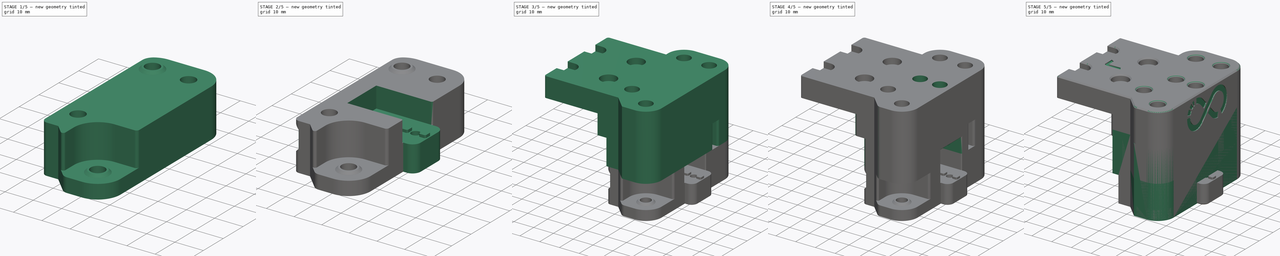
[diagram: build sequence overview — one tinted view per stage of 5, left to right]
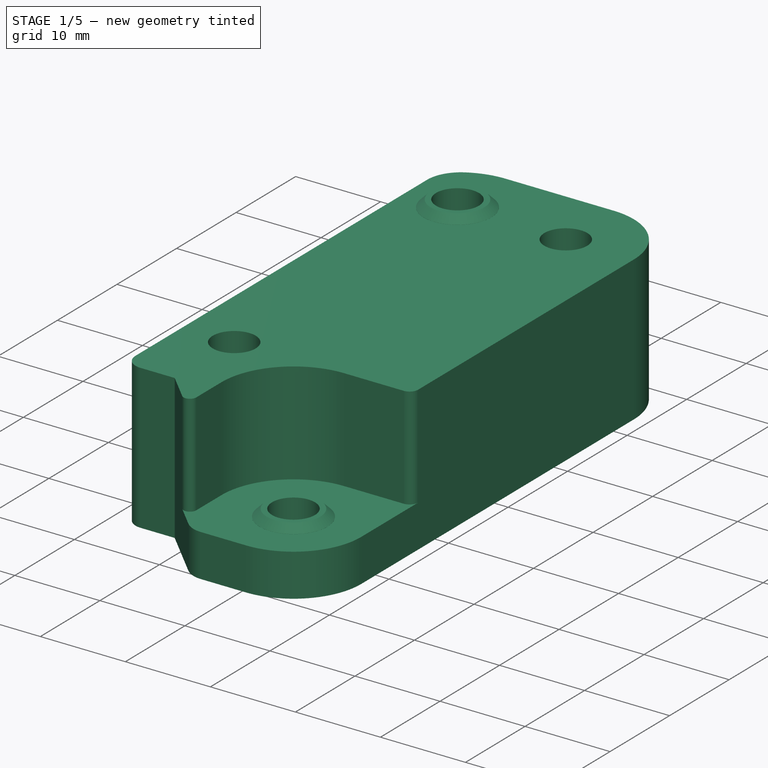
[diagram: stage 1 of 5 — iso view after this stage's code; geometry added in this stage tinted green]
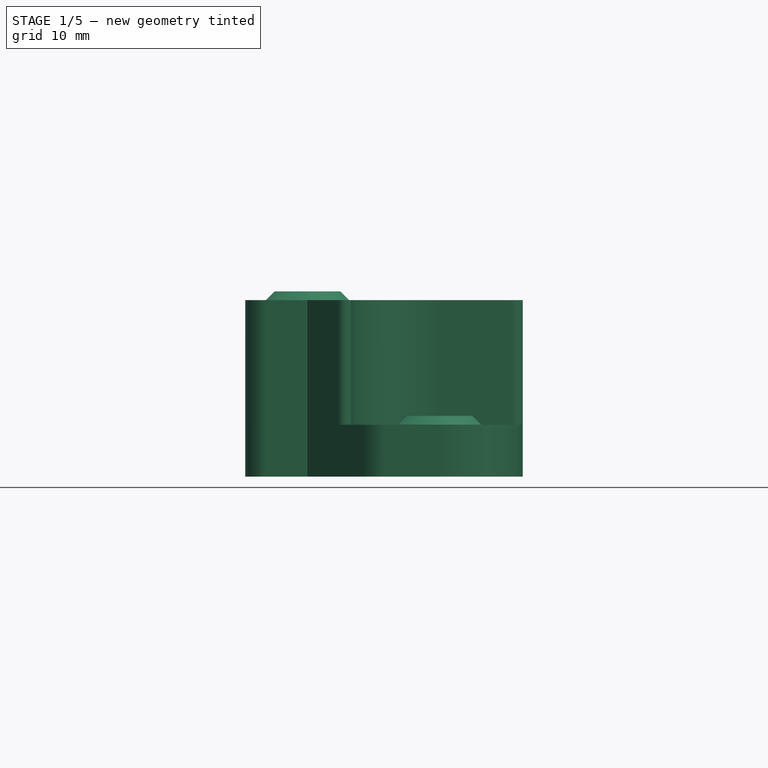
[diagram: stage 1 of 5 — front view after this stage's code; geometry added in this stage tinted green]
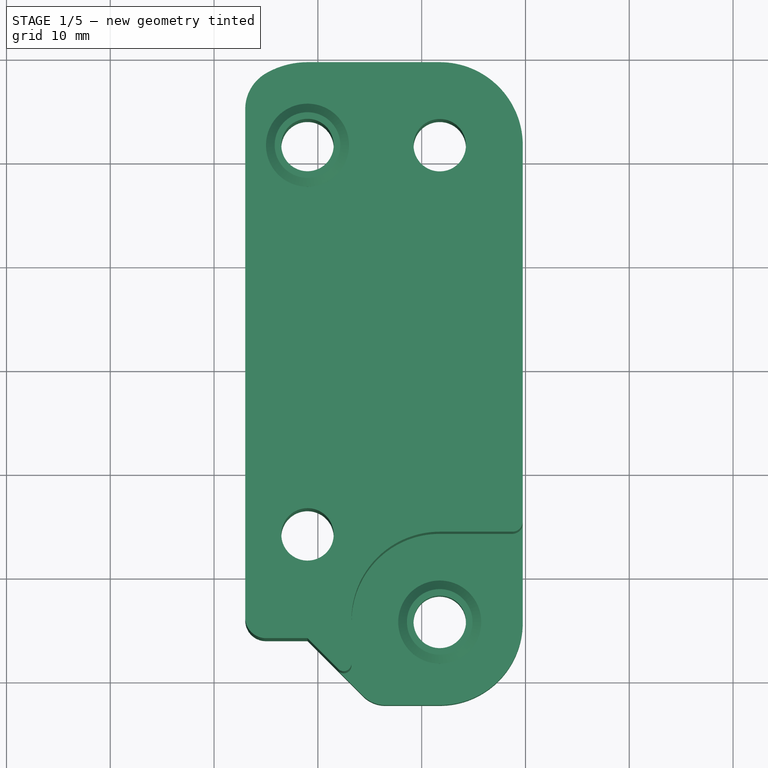
[diagram: stage 1 of 5 — top view after this stage's code; geometry added in this stage tinted green]
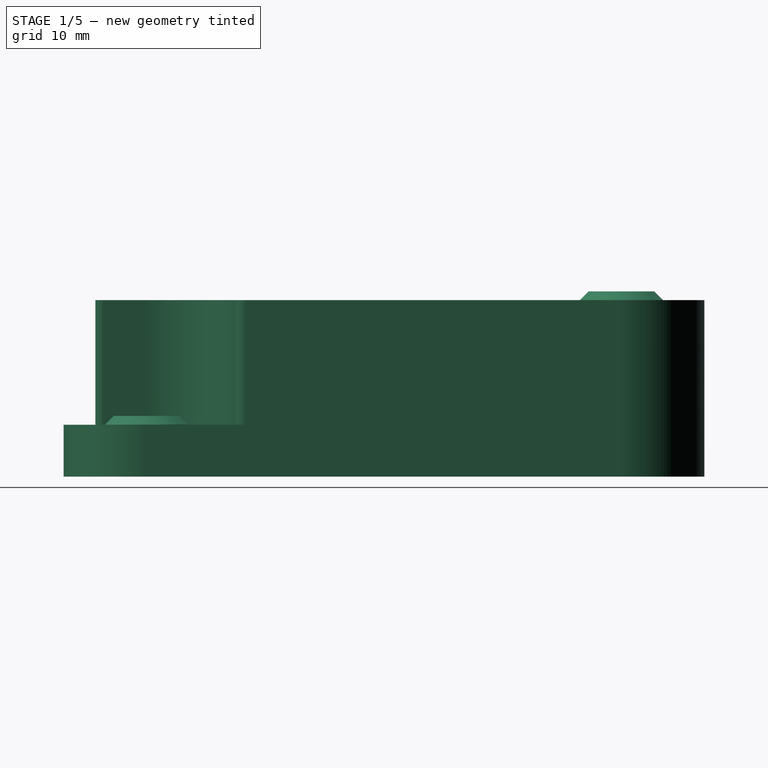
[diagram: stage 1 of 5 — right view after this stage's code; geometry added in this stage tinted green]
FCSTD DOCUMENT  (FreeCAD 0.19R24291 (Git))
Label: y-carrier-left-makerbeamxl
License: Other
LicenseURL: GPL3
objects: Sketcher::SketchObject×22, PartDesign::Pocket×15, PartDesign::Fillet×12, PartDesign::Chamfer×9, PartDesign::Pad×8, Part::Feature×6, PartDesign::FeatureBase×3, PartDesign::Body×3, Part::Refine×2, Part::Chamfer×2, Part::Cut×2, Spreadsheet::Sheet×1, Part::Extrusion×1
note: 129 computed .brp shape members not serialized (recipe doc carries the construction recipe); baked Part::Feature solids carry a one-line shape summary decoded from their .brp

FEATURE [PartDesign::FeatureBase] BaseFeature001
  BaseFeature = -> Extrude001
FEATURE [Sketcher::SketchObject] Sketch002
  FullyConstrained = true
  MapMode = 5
  Placement = pos=(0,0,17) rot=(0,0,1;0rad)
  Support = -> [BaseFeature001]
  expr: Constraints[0] = <<params>>.front_x_offset
  expr: Constraints[1] = <<params>>.front_y_offset
  expr: Constraints[8] = <<params>>.idler_clearance
  sketch-geometry (7):
    g0: ArcOfCircle CenterX=21.74 CenterY=-24.24 CenterZ=0 NormalX=0 NormalY=0 NormalZ=1 AngleXU=0 Radius=8.5 StartAngle=1.5708 EndAngle=3.14159
    g1: LineSegment StartX=21.74 StartY=-24.24 StartZ=0 EndX=21.74 EndY=-15.74 EndZ=0
    g2: LineSegment StartX=13.24 StartY=-24.24 StartZ=0 EndX=21.74 EndY=-24.24 EndZ=0
    g3: LineSegment StartX=13.24 StartY=-24.24 StartZ=0 EndX=13.24 EndY=-33.24 EndZ=0
    g4: LineSegment StartX=13.24 StartY=-33.24 StartZ=0 EndX=30.74 EndY=-33.24 EndZ=0
    g5: LineSegment StartX=30.74 StartY=-33.24 StartZ=0 EndX=30.74 EndY=-15.74 EndZ=0
    g6: LineSegment StartX=30.74 StartY=-15.74 StartZ=0 EndX=21.74 EndY=-15.74 EndZ=0
  constraints (19):
    c: DistanceX(g-1,g0) = 21.74
    c: DistanceY(g0,g-1) = 24.24
    c: Coincident(g1,g0)
    c: Coincident(g1,g0)
    c: Vertical(g1)
    c: Coincident(g2,g0)
    c: Coincident(g2,g0)
    c: Horizontal(g2)
    c: Radius(g0) = 8.5
    c: Tangent(g0,g3) = -1.5708
    c: Coincident(g3,g4)
    c: Horizontal(g4)
    c: Coincident(g4,g5)
    c: Coincident(g5,g6)
    c: Coincident(g6,g0)
    c: Horizontal(g6)
    c: Vertical(g5)
    c: DistanceY(g3,g3) = 9
    c: DistanceX(g6,g6) = 9
FEATURE [PartDesign::Pocket] Pocket003
  BaseFeature = -> BaseFeature001
  Length = 12
  Length2 = 100
  Profile = -> Sketch002
  Type = 0
  expr: Length = <<params>>.idler_pocket_height
FEATURE [PartDesign::Fillet] Fillet
  Base = -> Pocket003 [Edge38]
  BaseFeature = -> Pocket003
  Radius = 0.75
  SupportTransform = false
FEATURE [PartDesign::Fillet] Fillet001
  Base = -> Fillet [Edge28]
  BaseFeature = -> Fillet
  Radius = 1
  SupportTransform = false
FEATURE [Sketcher::SketchObject] Sketch004
  FullyConstrained = true
  MapMode = 5
  Placement = pos=(0,0,5) rot=(0,0,1;0rad)
  Support = -> [Fillet001]
  expr: Constraints[1] = <<params>>.m5_hole_small
  expr: Constraints[2] = <<params>>.idler_support_r
  expr: Constraints[3] = <<params>>.front_x_offset
  expr: Constraints[4] = <<params>>.front_y_offset
  sketch-geometry (2):
    g0: Circle CenterX=21.74 CenterY=-24.24 CenterZ=0 NormalX=0 NormalY=0 NormalZ=1 AngleXU=0 Radius=4
    g1: Circle CenterX=21.74 CenterY=-24.24 CenterZ=0 NormalX=0 NormalY=0 NormalZ=1 AngleXU=0 Radius=2.525
  constraints (5):
    c: Coincident(g1,g0)
    c: Radius(g1) = 2.525
    c: Radius(g0) = 4
    c: DistanceX(g-1,g0) = 21.74
    c: DistanceY(g0,g-1) = 24.24
FEATURE [PartDesign::Pad] Pad
  BaseFeature = -> Fillet001
  Direction = (1,1,1)
  Length = 0.85
  Length2 = 100
  Profile = -> Sketch004
  Type = 0
  expr: Length = <<params>>.idler_support_h
FEATURE [Sketcher::SketchObject] Sketch005
  FullyConstrained = true
  MapMode = 5
  Placement = pos=(0,0,17) rot=(0,0,1;0rad)
  Support = -> [Pad]
  expr: Constraints[1] = <<params>>.idler_support_r
  expr: Constraints[2] = <<params>>.m5_hole_small
  expr: Constraints[3] = <<params>>.back_x_offset
  expr: Constraints[4] = <<params>>.back_y_offset
  sketch-geometry (2):
    g0: Circle CenterX=9 CenterY=21.5 CenterZ=0 NormalX=0 NormalY=0 NormalZ=1 AngleXU=0 Radius=2.525
    g1: Circle CenterX=9 CenterY=21.5 CenterZ=0 NormalX=0 NormalY=0 NormalZ=1 AngleXU=0 Radius=4
  constraints (5):
    c: Coincident(g1,g0)
    c: Radius(g1) = 4
    c: Radius(g0) = 2.525
    c: DistanceX(g-1,g0) = 9
    c: DistanceY(g-1,g0) = 21.5
FEATURE [PartDesign::Pad] Pad001
  BaseFeature = -> Pad
  Direction = (1,1,1)
  Length = 0.85
  Length2 = 100
  Profile = -> Sketch005
  Type = 0
  expr: Length = <<params>>.idler_support_h
FEATURE [PartDesign::Chamfer] Chamfer
  Angle = 45
  Base = -> Pad001 [Edge62,Edge49]
  BaseFeature = -> Pad001
  ChamferType = 0
  FlipDirection = false
  Size = 0.84
  Size2 = 1
  SupportTransform = false
FEATURE [PartDesign::Fillet] Fillet005
  Base = -> Chamfer [Edge48]
  BaseFeature = -> Chamfer
  Radius = 2
  SupportTransform = false
FEATURE [PartDesign::Fillet] Fillet006
  Base = -> Fillet005 [Edge26]
  BaseFeature = -> Fillet005
  Radius = 3
  SupportTransform = false
FEATURE [PartDesign::Fillet] Fillet008
  Base = -> Fillet006 [Edge54]
  BaseFeature = -> Fillet006
  Radius = 4
  SupportTransform = false
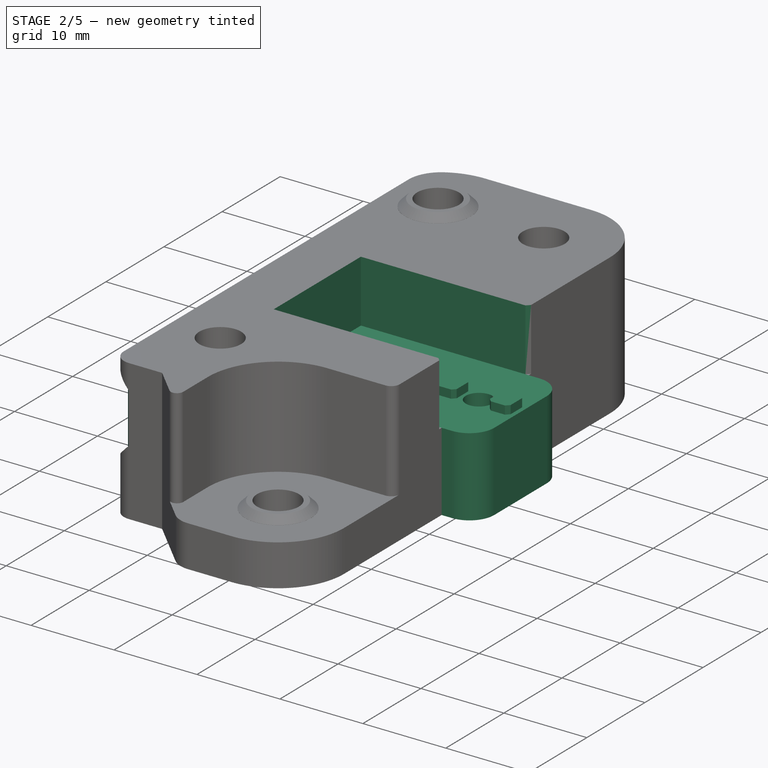
[diagram: stage 2 of 5 — iso view after this stage's code; geometry added in this stage tinted green]
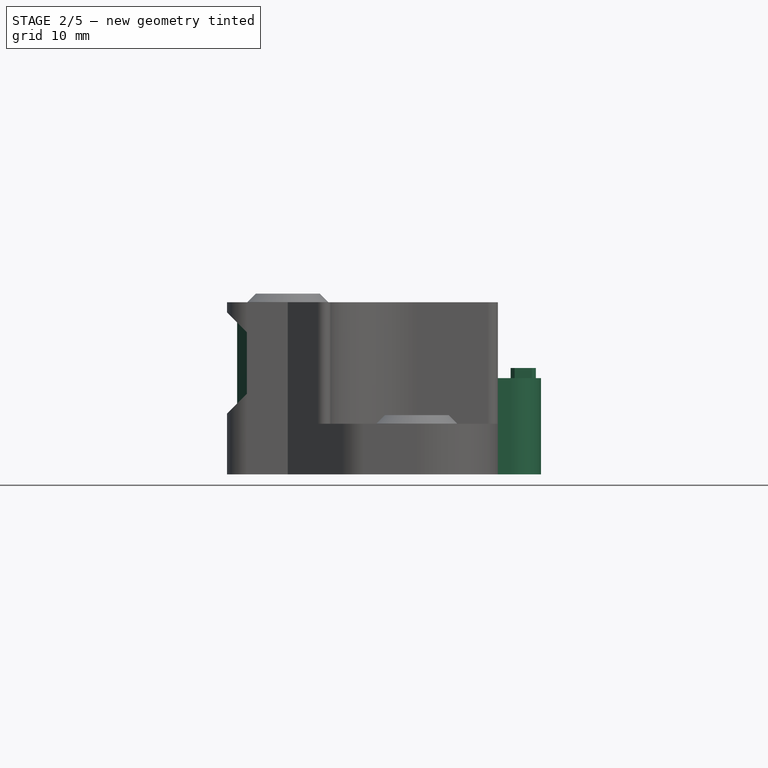
[diagram: stage 2 of 5 — front view after this stage's code; geometry added in this stage tinted green]
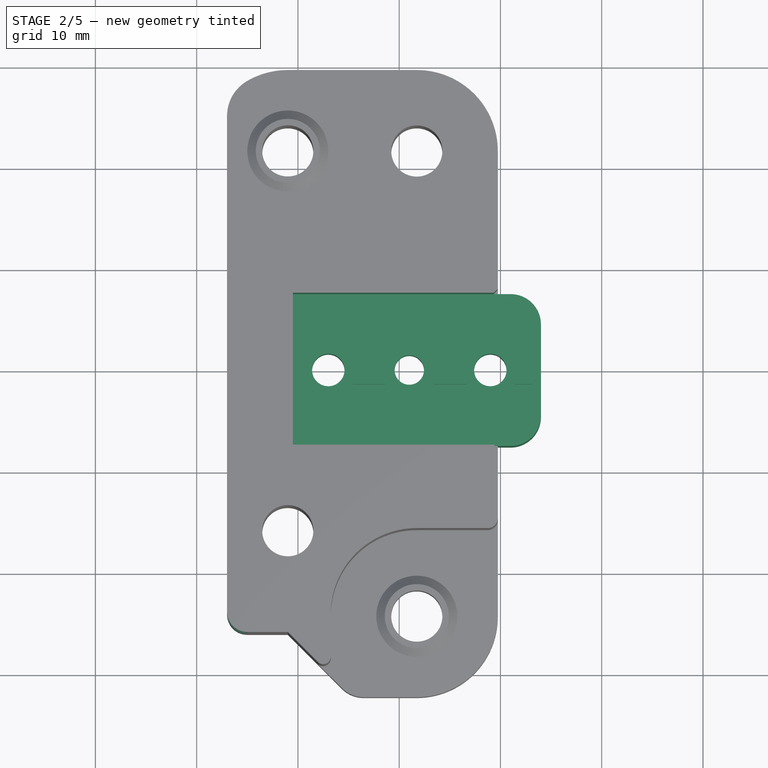
[diagram: stage 2 of 5 — top view after this stage's code; geometry added in this stage tinted green]
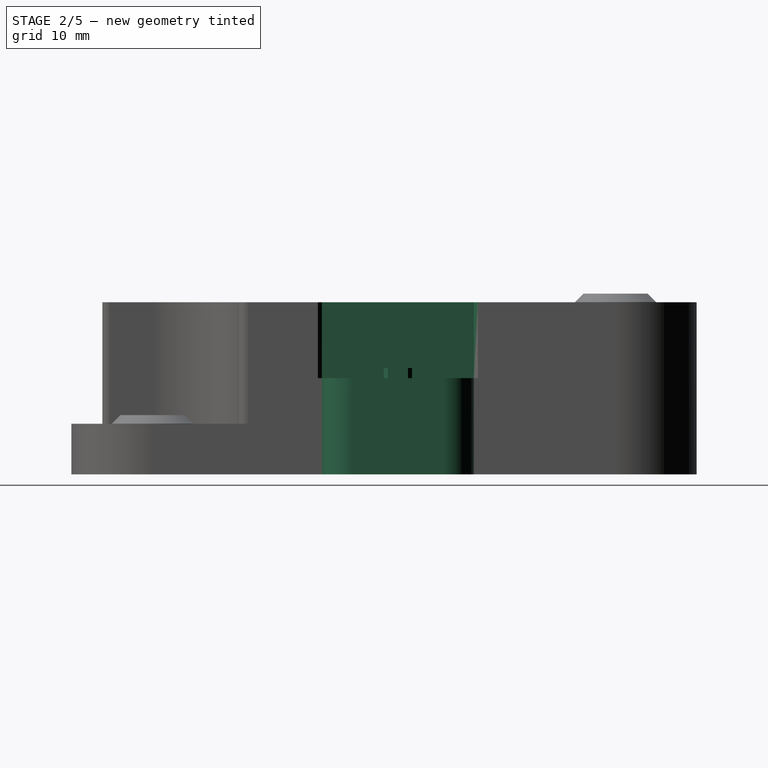
[diagram: stage 2 of 5 — right view after this stage's code; geometry added in this stage tinted green]
FEATURE [Sketcher::SketchObject] Sketch010
  FullyConstrained = true
  MapMode = 5
  Placement = pos=(0,0,0) rot=(1,0,0;3.14159rad)
  Support = -> [Fillet008]
  expr: Constraints[10] = <<params>>.profile_width
  expr: Constraints[11] = <<params>>.profile_width / 2
  sketch-geometry (4):
    g0: LineSegment StartX=29 StartY=7.5 StartZ=0 EndX=34 EndY=7.5 EndZ=0
    g1: LineSegment StartX=34 StartY=7.5 StartZ=0 EndX=34 EndY=-7.5 EndZ=0
    g2: LineSegment StartX=34 StartY=-7.5 StartZ=0 EndX=29 EndY=-7.5 EndZ=0
    g3: LineSegment StartX=29 StartY=-7.5 StartZ=0 EndX=29 EndY=7.5 EndZ=0
  constraints (12):
    c: Coincident(g0,g1)
    c: Coincident(g1,g2)
    c: Coincident(g2,g3)
    c: Coincident(g3,g0)
    c: Horizontal(g0)
    c: Horizontal(g2)
    c: Vertical(g1)
    c: Vertical(g3)
    c: DistanceX(g0,g0) = 5
    c: DistanceX(g-1,g0) = 29
    c: DistanceY(g1,g1) = 15
    c: DistanceY(g-1,g0) = 7.5
FEATURE [PartDesign::Pad] Pad004
  BaseFeature = -> Fillet008
  Direction = (1,1,1)
  Length = 10
  Length2 = 100
  Profile = -> Sketch010
  Type = 3
  UpToFace = -> Fillet008 [Face18]
FEATURE [PartDesign::Fillet] Fillet011
  Base = -> Pad004 [Edge77,Edge74]
  BaseFeature = -> Pad004
  Radius = 3
  SupportTransform = false
FEATURE [Sketcher::SketchObject] Sketch011
  FullyConstrained = true
  MapMode = 5
  Placement = pos=(0,0,17) rot=(0,0,1;0rad)
  Support = -> [Fillet011]
  expr: Constraints[9] = <<params>>.profile_offset
  expr: Constraints[10] = <<params>>.profile_width / 2
  expr: Constraints[11] = <<params>>.profile_width
  sketch-geometry (4):
    g0: LineSegment StartX=9.5 StartY=7.5 StartZ=0 EndX=39.5 EndY=7.5 EndZ=0
    g1: LineSegment StartX=39.5 StartY=7.5 StartZ=0 EndX=39.5 EndY=-7.5 EndZ=0
    g2: LineSegment StartX=39.5 StartY=-7.5 StartZ=0 EndX=9.5 EndY=-7.5 EndZ=0
    g3: LineSegment StartX=9.5 StartY=-7.5 StartZ=0 EndX=9.5 EndY=7.5 EndZ=0
  constraints (12):
    c: Coincident(g0,g1)
    c: Coincident(g1,g2)
    c: Coincident(g2,g3)
    c: Coincident(g3,g0)
    c: Horizontal(g0)
    c: Horizontal(g2)
    c: Vertical(g1)
    c: Vertical(g3)
    c: DistanceX(g0,g0) = 30
    c: DistanceX(g-1,g0) = 9.5
    c: DistanceY(g-1,g0) = 7.5
    c: DistanceY(g1,g1) = 15
FEATURE [PartDesign::Pocket] Pocket007
  BaseFeature = -> Fillet011
  Length = 7.5
  Length2 = 100
  Profile = -> Sketch011
  Type = 0
  expr: Length = <<params>>.profile_width / 2
FEATURE [PartDesign::Chamfer] Chamfer003
  Angle = 45
  Base = -> Pocket007 [Edge69,Edge12]
  BaseFeature = -> Pocket007
  ChamferType = 0
  FlipDirection = false
  Size = 0.4
  Size2 = 1
  SupportTransform = false
FEATURE [Sketcher::SketchObject] Sketch012
  FullyConstrained = true
  MapMode = 5
  Placement = pos=(0,29.5,0) rot=(0,0.707107,0.707107;3.14159rad)
  Support = -> [Chamfer003]
  sketch-geometry (4):
    g0: LineSegment StartX=-3 StartY=16 StartZ=0 EndX=-4 EndY=15 EndZ=0
    g1: LineSegment StartX=-4 StartY=15 StartZ=0 EndX=-4 EndY=7 EndZ=0
    g2: LineSegment StartX=-4 StartY=7 StartZ=0 EndX=-3 EndY=6 EndZ=0
    g3: LineSegment StartX=-3 StartY=6 StartZ=0 EndX=-3 EndY=16 EndZ=0
  constraints (12):
    c: Coincident(g0,g1)
    c: Vertical(g1)
    c: Coincident(g1,g2)
    c: Coincident(g2,g3)
    c: Coincident(g3,g0)
    c: Vertical(g3)
    c: DistanceY(g3,g3) = 10
    c: DistanceY(g1,g1) = 8
    c: DistanceX(g1,g2) = 1
    c: DistanceX(g2,g-1) = 3
    c: DistanceY(g-1,g2) = 6
    c: DistanceY(g0,g0) = 1
FEATURE [PartDesign::Pocket] Pocket008
  BaseFeature = -> Chamfer003
  Length = 5
  Length2 = 100
  Profile = -> Sketch012
  Type = 1
FEATURE [PartDesign::Chamfer] Chamfer030002
  Angle = 45
  Base = -> Pocket008 [Edge71,Edge79]
  BaseFeature = -> Pocket008
  ChamferType = 0
  FlipDirection = false
  Size = 1
  Size2 = 1
  SupportTransform = false
FEATURE [Sketcher::SketchObject] Sketch013
  FullyConstrained = true
  MapMode = 5
  Placement = pos=(0,0,0) rot=(1,0,0;3.14159rad)
  Support = -> [Chamfer030002]
  expr: Constraints[6] = <<params>>.m3_hole_large
  expr: Constraints[7] = <<params>>.m3_hole_large
  expr: Constraints[8] = <<params>>.m3_hole_small
  sketch-geometry (3):
    g0: Circle CenterX=13 CenterY=0 CenterZ=0 NormalX=0 NormalY=0 NormalZ=1 AngleXU=0 Radius=1.6
    g1: Circle CenterX=21 CenterY=0 CenterZ=0 NormalX=0 NormalY=0 NormalZ=1 AngleXU=0 Radius=1.45
    g2: Circle CenterX=29 CenterY=0 CenterZ=0 NormalX=0 NormalY=0 NormalZ=1 AngleXU=0 Radius=1.6
  constraints (9):
    c: DistanceX(g-1,g0) = 13
    c: DistanceX(g-1,g1) = 21
    c: DistanceX(g-1,g2) = 29
    c: DistanceY(g-1,g0) = 0
    c: DistanceY(g0,g1) = 0
    c: DistanceY(g1,g2) = 0
    c: Radius(g0) = 1.6
    c: Radius(g2) = 1.6
    c: Radius(g1) = 1.45
FEATURE [PartDesign::Pocket] Pocket009
  BaseFeature = -> Chamfer030002
  Length = 5
  Length2 = 100
  Profile = -> Sketch013
  Type = 1
FEATURE [Sketcher::SketchObject] Sketch014
  FullyConstrained = true
  MapMode = 5
  Placement = pos=(0,0,0) rot=(1,0,0;3.14159rad)
  Support = -> [Pocket009]
  expr: Constraints[4] = <<params>>.m3_head_small
  expr: Constraints[5] = <<params>>.m3_head_small
  sketch-geometry (2):
    g0: Circle CenterX=13 CenterY=0 CenterZ=0 NormalX=0 NormalY=0 NormalZ=1 AngleXU=0 Radius=3.25
    g1: Circle CenterX=29 CenterY=0 CenterZ=0 NormalX=0 NormalY=0 NormalZ=1 AngleXU=0 Radius=3.25
  constraints (6):
    c: DistanceY(g-1,g0) = 0
    c: DistanceY(g-1,g1) = 0
    c: DistanceX(g-1,g0) = 13
    c: DistanceX(g-1,g1) = 29
    c: Radius(g0) = 3.25
    c: Radius(g1) = 3.25
FEATURE [PartDesign::Pocket] Pocket010
  BaseFeature = -> Pocket009
  Length = 4
  Length2 = 100
  Profile = -> Sketch014
  Type = 0
FEATURE [Sketcher::SketchObject] Sketch015
  FullyConstrained = true
  MapMode = 5
  Placement = pos=(0,0,0) rot=(1,0,0;3.14159rad)
  Support = -> [Pocket010]
  expr: Constraints[0] = <<params>>.m3_head_small
  sketch-geometry (1):
    g0: Circle CenterX=21 CenterY=0 CenterZ=0 NormalX=0 NormalY=0 NormalZ=1 AngleXU=0 Radius=3.25
  constraints (3):
    c: Radius(g0) = 3.25
    c: DistanceY(g-1,g0) = 0
    c: DistanceX(g-1,g0) = 21
FEATURE [PartDesign::Pocket] Pocket011
  BaseFeature = -> Pocket010
  Length = 5
  Length2 = 100
  Profile = -> Sketch015
  Type = 0
FEATURE [Sketcher::SketchObject] Sketch018
  FullyConstrained = true
  MapMode = 5
  Placement = pos=(0,0,9.5) rot=(0,0,1;0rad)
  Support = -> [Pocket011]
  expr: Constraints[24] = <<params>>.profile_slot / 2
  expr: Constraints[25] = <<params>>.profile_slot
  expr: Constraints[26] = <<params>>.profile_slot
  expr: Constraints[27] = <<params>>.profile_slot
  sketch-geometry (12):
    g0: LineSegment StartX=15 StartY=1.4 StartZ=0 EndX=19 EndY=1.4 EndZ=0
    g1: LineSegment StartX=19 StartY=1.4 StartZ=0 EndX=19 EndY=-1.4 EndZ=0
    g2: LineSegment StartX=19 StartY=-1.4 StartZ=0 EndX=15 EndY=-1.4 EndZ=0
    g3: LineSegment StartX=15 StartY=-1.4 StartZ=0 EndX=15 EndY=1.4 EndZ=0
    g4: LineSegment StartX=23 StartY=1.4 StartZ=0 EndX=27 EndY=1.4 EndZ=0
    g5: LineSegment StartX=27 StartY=1.4 StartZ=0 EndX=27 EndY=-1.4 EndZ=0
    g6: LineSegment StartX=27 StartY=-1.4 StartZ=0 EndX=23 EndY=-1.4 EndZ=0
    g7: LineSegment StartX=23 StartY=-1.4 StartZ=0 EndX=23 EndY=1.4 EndZ=0
    g8: LineSegment StartX=31 StartY=1.4 StartZ=0 EndX=33.5 EndY=1.4 EndZ=0
    g9: LineSegment StartX=33.5 StartY=1.4 StartZ=0 EndX=33.5 EndY=-1.4 EndZ=0
    g10: LineSegment StartX=33.5 StartY=-1.4 StartZ=0 EndX=31 EndY=-1.4 EndZ=0
    g11: LineSegment StartX=31 StartY=-1.4 StartZ=0 EndX=31 EndY=1.4 EndZ=0
  constraints (36):
    c: Coincident(g0,g1)
    c: Coincident(g1,g2)
    c: Coincident(g2,g3)
    c: Coincident(g3,g0)
    c: Horizontal(g0)
    c: Horizontal(g2)
    c: Vertical(g1)
    c: Vertical(g3)
    c: Coincident(g4,g5)
    c: Coincident(g5,g6)
    c: Coincident(g6,g7)
    c: Coincident(g7,g4)
    c: Horizontal(g4)
    c: Horizontal(g6)
    c: Vertical(g5)
    c: Vertical(g7)
    c: Coincident(g8,g9)
    c: Coincident(g9,g10)
    c: Coincident(g10,g11)
    c: Coincident(g11,g8)
    c: Horizontal(g8)
    c: Horizontal(g10)
    c: Vertical(g9)
    c: Vertical(g11)
    c: DistanceY(g2,g-1) = 1.4
    c: DistanceY(g1,g1) = 2.8
    c: DistanceY(g7,g7) = 2.8
    c: DistanceY(g9,g9) = 2.8
    c: DistanceX(g-1,g0) = 15
    c: DistanceX(g0,g0) = 4
    c: DistanceX(g0,g4) = 4
    c: DistanceX(g4,g4) = 4
    c: DistanceX(g4,g8) = 4
    c: DistanceX(g8,g8) = 2.5
    c: DistanceY(g4,g0) = 0
    c: DistanceY(g8,g4) = 0
FEATURE [PartDesign::Pad] Pad005
  BaseFeature = -> Pocket011
  Direction = (1,1,1)
  Length = 1
  Length2 = 100
  Profile = -> Sketch018
  Type = 0
FEATURE [PartDesign::Chamfer] Chamfer030003
  Angle = 45
  Base = -> Pad005 [Edge201,Edge199,Edge183,Edge181,Edge196,Edge197,Edge187,Edge178,Edge179,Edge191,Edge189,Edge186]
  BaseFeature = -> Pad005
  ChamferType = 0
  FlipDirection = false
  Size = 0.4
  Size2 = 1
  SupportTransform = false
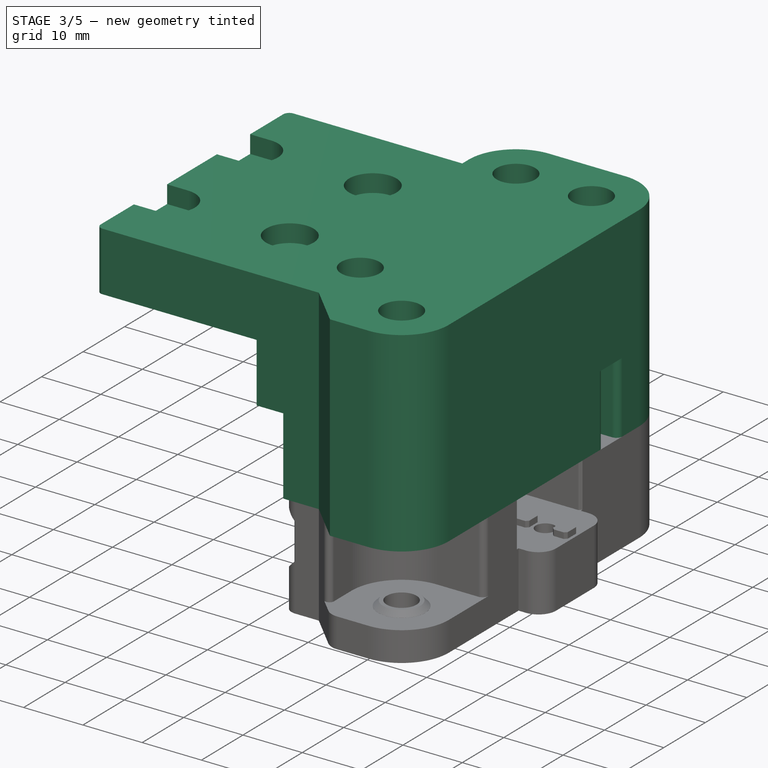
[diagram: stage 3 of 5 — iso view after this stage's code; geometry added in this stage tinted green]
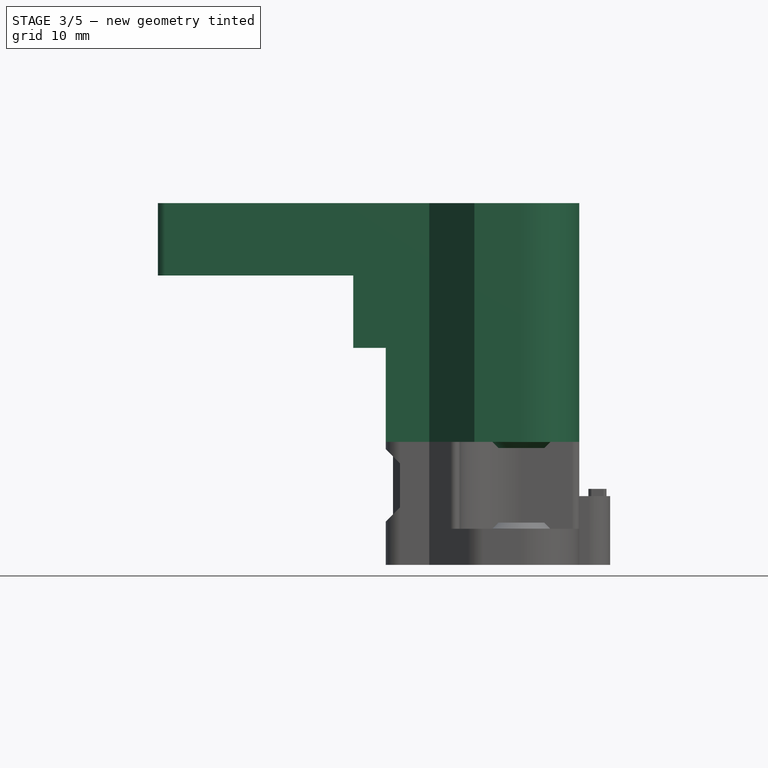
[diagram: stage 3 of 5 — front view after this stage's code; geometry added in this stage tinted green]
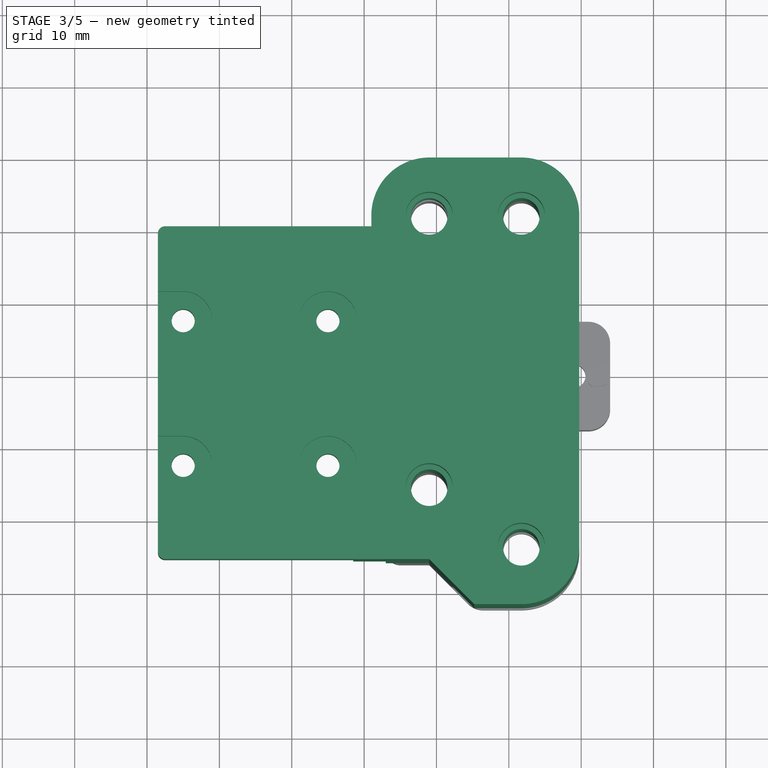
[diagram: stage 3 of 5 — top view after this stage's code; geometry added in this stage tinted green]
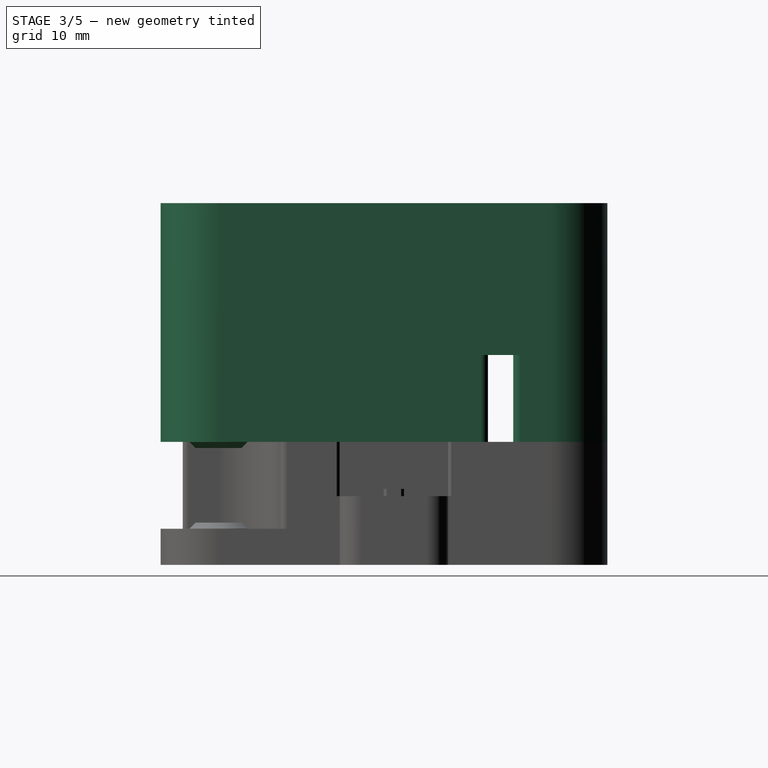
[diagram: stage 3 of 5 — right view after this stage's code; geometry added in this stage tinted green]
FEATURE [Part::Feature] Extrude001  label="bottom-template001"
  shape: bbox 26.74 x 61.74 x 17 mm, 15 faces (baked)
FEATURE [Part::Feature] Fusion001001
  shape: bbox 58.24 x 61.74 x 33 mm, 47 faces (baked)
FEATURE [PartDesign::FeatureBase] BaseFeature002
  BaseFeature = -> Fusion001001
FEATURE [Sketcher::SketchObject] Sketch003
  FullyConstrained = true
  MapMode = 5
  Placement = pos=(0,0,17) rot=(1,0,0;3.14159rad)
  Support = -> [BaseFeature002]
  expr: Constraints[5] = <<params>>.idler_clearance
  expr: Constraints[7] = <<params>>.back_x_offset
  expr: Constraints[8] = <<params>>.back_y_offset
  sketch-geometry (7):
    g0: ArcOfCircle CenterX=9 CenterY=-21.5 CenterZ=0 NormalX=0 NormalY=0 NormalZ=1 AngleXU=0 Radius=8.5 StartAngle=0 EndAngle=1.5708
    g1: LineSegment StartX=9 StartY=-13 StartZ=0 EndX=9 EndY=-21.5 EndZ=0
    g2: LineSegment StartX=9 StartY=-21.5 StartZ=0 EndX=17.5 EndY=-21.5 EndZ=0
    g3: LineSegment StartX=9 StartY=-13 StartZ=0 EndX=0 EndY=-13 EndZ=0
    g4: LineSegment StartX=0 StartY=-13 StartZ=0 EndX=0 EndY=-30.5 EndZ=0
    g5: LineSegment StartX=0 StartY=-30.5 StartZ=0 EndX=17.5 EndY=-30.5 EndZ=0
    g6: LineSegment StartX=17.5 StartY=-30.5 StartZ=0 EndX=17.5 EndY=-21.5 EndZ=0
  constraints (19):
    c: Coincident(g1,g0)
    c: Coincident(g1,g0)
    c: Vertical(g1)
    c: Coincident(g2,g0)
    c: Horizontal(g2)
    c: Radius(g0) = 8.5
    c: Coincident(g2,g0)
    c: DistanceX(g-1,g0) = 9
    c: DistanceY(g0,g-1) = 21.5
    c: Tangent(g0,g3) = -1.5708
    c: Coincident(g3,g4)
    c: Vertical(g4)
    c: Coincident(g4,g5)
    c: Horizontal(g5)
    c: Coincident(g5,g6)
    c: Coincident(g6,g0)
    c: Vertical(g6)
    c: DistanceY(g6,g6) = 9
    c: DistanceX(g3,g3) = 9
FEATURE [PartDesign::Pocket] Pocket004
  BaseFeature = -> BaseFeature002
  Length = 12
  Length2 = 100
  Profile = -> Sketch003
  Type = 0
  expr: Length = <<params>>.idler_pocket_height
FEATURE [Sketcher::SketchObject] Sketch006
  FullyConstrained = true
  MapMode = 5
  Placement = pos=(0,0,17) rot=(1,0,0;3.14159rad)
  Support = -> [Pocket004]
  expr: Constraints[1] = <<params>>.m5_hole_small
  expr: Constraints[2] = <<params>>.idler_support_r
  expr: Constraints[3] = <<params>>.front_x_offset
  expr: Constraints[4] = <<params>>.front_y_offset
  sketch-geometry (2):
    g0: Circle CenterX=21.74 CenterY=24.24 CenterZ=0 NormalX=0 NormalY=0 NormalZ=1 AngleXU=0 Radius=4
    g1: Circle CenterX=21.74 CenterY=24.24 CenterZ=0 NormalX=0 NormalY=0 NormalZ=1 AngleXU=0 Radius=2.525
  constraints (5):
    c: Coincident(g1,g0)
    c: Radius(g1) = 2.525
    c: Radius(g0) = 4
    c: DistanceX(g-1,g0) = 21.74
    c: DistanceY(g-1,g0) = 24.24
FEATURE [PartDesign::Pad] Pad002
  BaseFeature = -> Pocket004
  Direction = (1,1,1)
  Length = 0.85
  Length2 = 100
  Profile = -> Sketch006
  Type = 0
  expr: Length = <<params>>.idler_support_h
FEATURE [Sketcher::SketchObject] Sketch007
  FullyConstrained = true
  MapMode = 5
  Placement = pos=(0,0,29) rot=(1,0,0;3.14159rad)
  Support = -> [Pad002]
  expr: Constraints[1] = <<params>>.m5_hole_small
  expr: Constraints[2] = <<params>>.idler_support_r
  expr: Constraints[3] = <<params>>.back_x_offset
  expr: Constraints[4] = <<params>>.back_y_offset
  sketch-geometry (2):
    g0: Circle CenterX=9 CenterY=-21.5 CenterZ=0 NormalX=0 NormalY=0 NormalZ=1 AngleXU=0 Radius=4
    g1: Circle CenterX=9 CenterY=-21.5 CenterZ=0 NormalX=0 NormalY=0 NormalZ=1 AngleXU=0 Radius=2.525
  constraints (5):
    c: Coincident(g1,g0)
    c: Radius(g1) = 2.525
    c: Radius(g0) = 4
    c: DistanceX(g-1,g0) = 9
    c: DistanceY(g0,g-1) = 21.5
FEATURE [PartDesign::Pad] Pad003
  BaseFeature = -> Pad002
  Direction = (1,1,1)
  Length = 0.85
  Length2 = 100
  Profile = -> Sketch007
  Type = 0
  expr: Length = <<params>>.idler_support_h
FEATURE [PartDesign::Chamfer] Chamfer001
  Angle = 45
  Base = -> Pad003 [Edge127,Edge133]
  BaseFeature = -> Pad003
  ChamferType = 0
  FlipDirection = false
  Size = 0.84
  Size2 = 1
  SupportTransform = false
FEATURE [Sketcher::SketchObject] Sketch008
  FullyConstrained = true
  MapMode = 5
  Placement = pos=(0,0,29) rot=(1,0,0;3.14159rad)
  Support = -> [Chamfer001]
  expr: Constraints[9] = <<params>>.back_y_offset - 8.5
  sketch-geometry (4):
    g0: LineSegment StartX=0 StartY=-13 StartZ=0 EndX=35 EndY=-13 EndZ=0
    g1: LineSegment StartX=35 StartY=-13 StartZ=0 EndX=35 EndY=-16.5 EndZ=0
    g2: LineSegment StartX=35 StartY=-16.5 StartZ=0 EndX=0 EndY=-16.5 EndZ=0
    g3: LineSegment StartX=0 StartY=-16.5 StartZ=0 EndX=0 EndY=-13 EndZ=0
  constraints (12):
    c: Coincident(g0,g1)
    c: Coincident(g1,g2)
    c: Coincident(g2,g3)
    c: Coincident(g3,g0)
    c: Horizontal(g0)
    c: Horizontal(g2)
    c: Vertical(g1)
    c: Vertical(g3)
    c: DistanceY(g1,g1) = 3.5
    c: DistanceY(g0,g-1) = 13
    c: DistanceX(g-1,g0) = 0
    c: DistanceX(g2,g2) = 35
FEATURE [PartDesign::Pocket] Pocket005
  BaseFeature = -> Chamfer001
  Length = 5
  Length2 = 100
  Profile = -> Sketch008
  Reversed = true
  Type = 1
FEATURE [PartDesign::Fillet] Fillet002
  Base = -> Pocket005 [Edge30]
  BaseFeature = -> Pocket005
  Radius = 2
  SupportTransform = false
FEATURE [PartDesign::Fillet] Fillet003
  Base = -> Fillet002 [Edge42,Edge41,Edge18]
  BaseFeature = -> Fillet002
  Radius = 1
  SupportTransform = false
FEATURE [PartDesign::Pocket] Pocket014
  BaseFeature = -> Chamfer030003
  Length = 2.5
  Length2 = 100
  Profile = -> Sketch020
  Type = 0
FEATURE [PartDesign::Chamfer] Chamfer030009
  Angle = 45
  Base = -> Pocket014 [Edge141,Edge143]
  BaseFeature = -> Pocket014
  ChamferType = 0
  FlipDirection = false
  Size = 0.4
  Size2 = 1
  SupportTransform = false
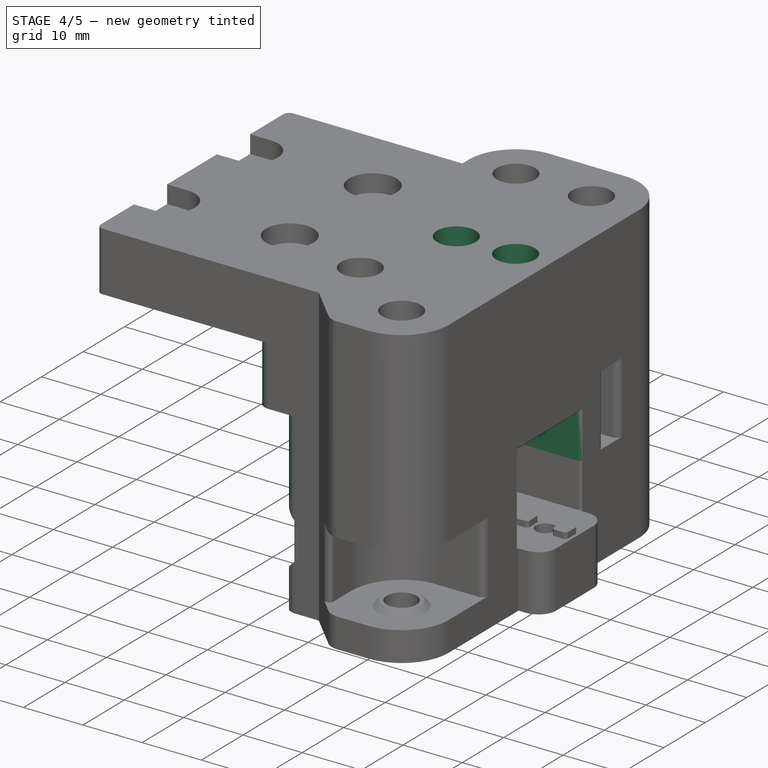
[diagram: stage 4 of 5 — iso view after this stage's code; geometry added in this stage tinted green]
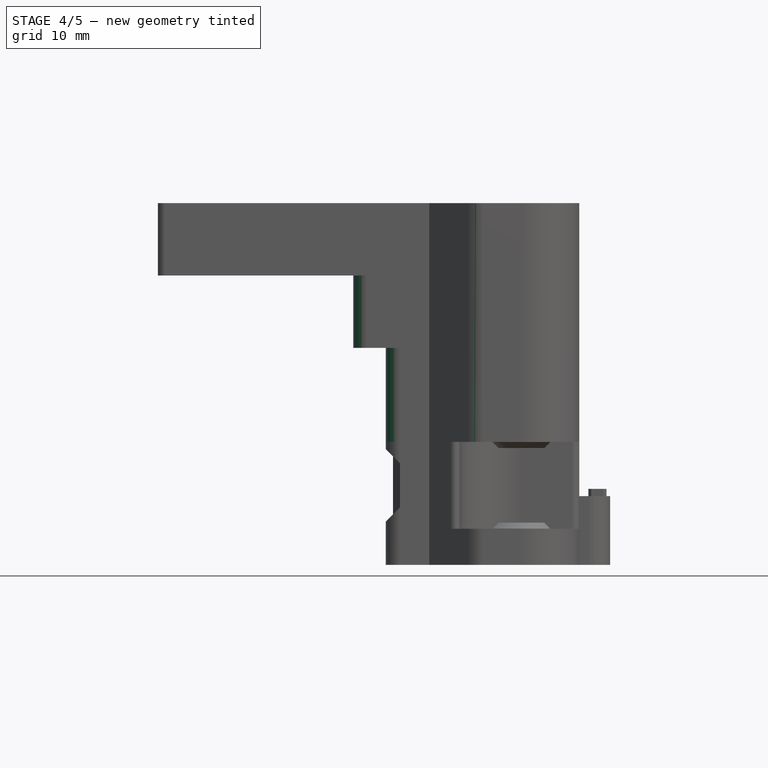
[diagram: stage 4 of 5 — front view after this stage's code; geometry added in this stage tinted green]
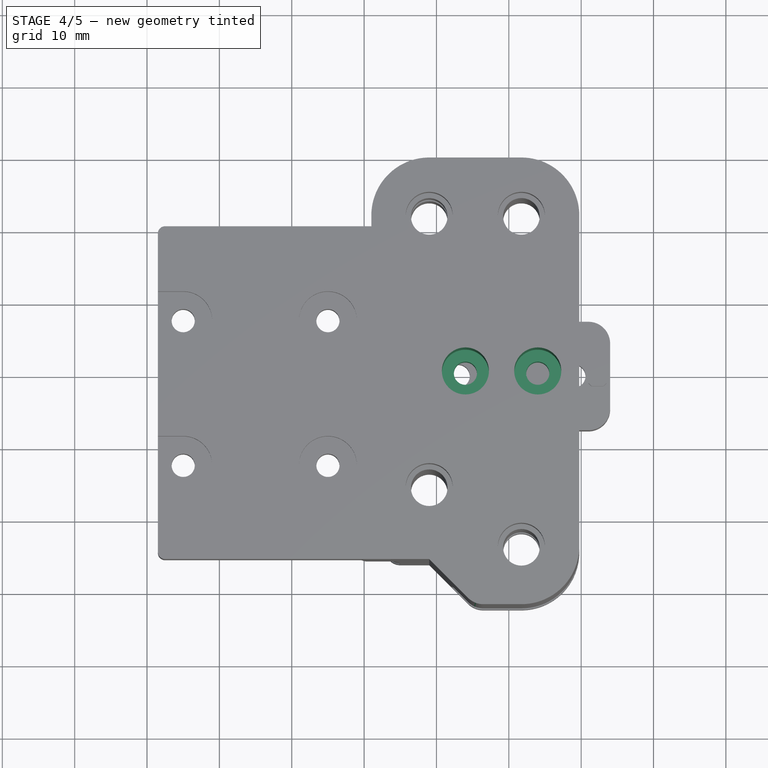
[diagram: stage 4 of 5 — top view after this stage's code; geometry added in this stage tinted green]
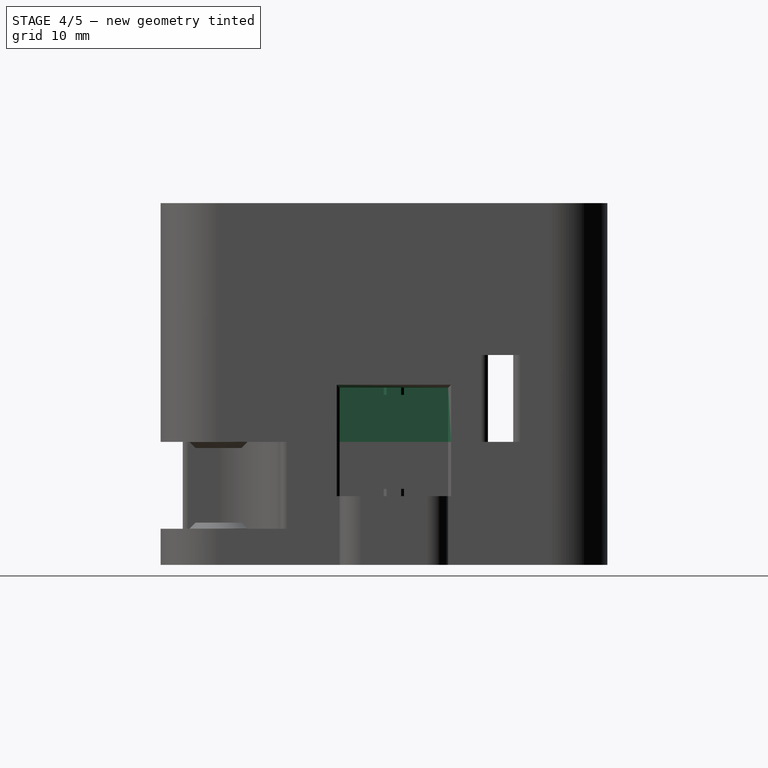
[diagram: stage 4 of 5 — right view after this stage's code; geometry added in this stage tinted green]
FEATURE [PartDesign::Fillet] Fillet004
  Base = -> Fillet003 [Edge40,Edge38]
  BaseFeature = -> Fillet003
  Radius = 2
  SupportTransform = false
FEATURE [PartDesign::Fillet] Fillet007
  Base = -> Fillet004 [Edge86]
  BaseFeature = -> Fillet004
  Radius = 3
  SupportTransform = false
FEATURE [PartDesign::Fillet] Fillet009
  Base = -> Fillet007 [Edge36]
  BaseFeature = -> Fillet007
  Radius = 4
  SupportTransform = false
FEATURE [PartDesign::Fillet] Fillet010
  Base = -> Fillet009 [Edge57,Edge53]
  BaseFeature = -> Fillet009
  Radius = 2
  SupportTransform = false
FEATURE [Sketcher::SketchObject] Sketch009
  FullyConstrained = true
  MapMode = 5
  Placement = pos=(0,0,17) rot=(1,0,0;3.14159rad)
  Support = -> [Fillet010]
  expr: Constraints[9] = <<params>>.profile_offset
  expr: Constraints[10] = <<params>>.profile_width
  expr: Constraints[11] = <<params>>.profile_width / 2
  sketch-geometry (4):
    g0: LineSegment StartX=9.5 StartY=7.5 StartZ=0 EndX=39.5 EndY=7.5 EndZ=0
    g1: LineSegment StartX=39.5 StartY=7.5 StartZ=0 EndX=39.5 EndY=-7.5 EndZ=0
    g2: LineSegment StartX=39.5 StartY=-7.5 StartZ=0 EndX=9.5 EndY=-7.5 EndZ=0
    g3: LineSegment StartX=9.5 StartY=-7.5 StartZ=0 EndX=9.5 EndY=7.5 EndZ=0
  constraints (12):
    c: Coincident(g0,g1)
    c: Coincident(g1,g2)
    c: Coincident(g2,g3)
    c: Coincident(g3,g0)
    c: Horizontal(g0)
    c: Horizontal(g2)
    c: Vertical(g1)
    c: Vertical(g3)
    c: DistanceX(g0,g0) = 30
    c: DistanceX(g-1,g0) = 9.5
    c: DistanceY(g1,g1) = 15
    c: DistanceY(g2,g-1) = 7.5
FEATURE [PartDesign::Pocket] Pocket006
  BaseFeature = -> Fillet010
  Length = 7.5
  Length2 = 100
  Profile = -> Sketch009
  Type = 0
  expr: Length = <<params>>.profile_width / 2
FEATURE [PartDesign::Chamfer] Chamfer002
  Angle = 45
  Base = -> Pocket006 [Edge135,Edge134,Edge133]
  BaseFeature = -> Pocket006
  ChamferType = 0
  FlipDirection = false
  Size = 0.4
  Size2 = 1
  SupportTransform = false
FEATURE [Sketcher::SketchObject] Sketch016
  FullyConstrained = true
  MapMode = 5
  Placement = pos=(0,0,50) rot=(0,0,1;0rad)
  Support = -> [Chamfer002]
  expr: Constraints[1] = <<params>>.m3_hole_large
  expr: Constraints[2] = <<params>>.m3_hole_large
  sketch-geometry (2):
    g0: Circle CenterX=14 CenterY=0 CenterZ=0 NormalX=0 NormalY=0 NormalZ=1 AngleXU=0 Radius=1.6
    g1: Circle CenterX=24 CenterY=0 CenterZ=0 NormalX=0 NormalY=0 NormalZ=1 AngleXU=0 Radius=1.6
  constraints (6):
    c: PointOnObject(g0,g-1)
    c: Radius(g0) = 1.6
    c: Radius(g1) = 1.6
    c: DistanceY(g-1,g1) = 0
    c: DistanceX(g-1,g0) = 14
    c: DistanceX(g-1,g1) = 24
FEATURE [PartDesign::Pocket] Pocket012
  BaseFeature = -> Chamfer002
  Length = 5
  Length2 = 100
  Profile = -> Sketch016
  Type = 1
FEATURE [Sketcher::SketchObject] Sketch017
  FullyConstrained = true
  MapMode = 5
  Placement = pos=(0,0,50) rot=(0,0,1;0rad)
  Support = -> [Pocket012]
  expr: Constraints[0] = <<params>>.m3_head_small
  expr: Constraints[1] = <<params>>.m3_head_small
  sketch-geometry (2):
    g0: Circle CenterX=14 CenterY=0 CenterZ=0 NormalX=0 NormalY=0 NormalZ=1 AngleXU=0 Radius=3.25
    g1: Circle CenterX=24 CenterY=0 CenterZ=0 NormalX=0 NormalY=0 NormalZ=1 AngleXU=0 Radius=3.25
  constraints (6):
    c: Radius(g0) = 3.25
    c: Radius(g1) = 3.25
    c: DistanceY(g-1,g0) = 0
    c: DistanceY(g0,g1) = 0
    c: DistanceX(g-1,g0) = 14
    c: DistanceX(g-1,g1) = 24
FEATURE [PartDesign::Pocket] Pocket013
  BaseFeature = -> Pocket012
  Length = 18
  Length2 = 100
  Profile = -> Sketch017
  Type = 0
FEATURE [Sketcher::SketchObject] Sketch019
  FullyConstrained = true
  MapMode = 5
  Placement = pos=(0,0,24.5) rot=(1,0,0;3.14159rad)
  Support = -> [Pocket013]
  expr: Constraints[24] = <<params>>.profile_slot / 2
  expr: Constraints[25] = <<params>>.profile_slot
  expr: Constraints[26] = <<params>>.profile_slot
  expr: Constraints[27] = <<params>>.profile_slot
  sketch-geometry (12):
    g0: LineSegment StartX=10 StartY=1.4 StartZ=0 EndX=12 EndY=1.4 EndZ=0
    g1: LineSegment StartX=12 StartY=1.4 StartZ=0 EndX=12 EndY=-1.4 EndZ=0
    g2: LineSegment StartX=12 StartY=-1.4 StartZ=0 EndX=10 EndY=-1.4 EndZ=0
    g3: LineSegment StartX=10 StartY=-1.4 StartZ=0 EndX=10 EndY=1.4 EndZ=0
    g4: LineSegment StartX=16 StartY=1.4 StartZ=0 EndX=22 EndY=1.4 EndZ=0
    g5: LineSegment StartX=22 StartY=1.4 StartZ=0 EndX=22 EndY=-1.4 EndZ=0
    g6: LineSegment StartX=22 StartY=-1.4 StartZ=0 EndX=16 EndY=-1.4 EndZ=0
    g7: LineSegment StartX=16 StartY=-1.4 StartZ=0 EndX=16 EndY=1.4 EndZ=0
    g8: LineSegment StartX=26 StartY=1.4 StartZ=0 EndX=28.5 EndY=1.4 EndZ=0
    g9: LineSegment StartX=28.5 StartY=1.4 StartZ=0 EndX=28.5 EndY=-1.4 EndZ=0
    g10: LineSegment StartX=28.5 StartY=-1.4 StartZ=0 EndX=26 EndY=-1.4 EndZ=0
    g11: LineSegment StartX=26 StartY=-1.4 StartZ=0 EndX=26 EndY=1.4 EndZ=0
  constraints (36):
    c: Coincident(g0,g1)
    c: Coincident(g1,g2)
    c: Coincident(g2,g3)
    c: Coincident(g3,g0)
    c: Horizontal(g0)
    c: Horizontal(g2)
    c: Vertical(g1)
    c: Vertical(g3)
    c: Coincident(g4,g5)
    c: Coincident(g5,g6)
    c: Coincident(g6,g7)
    c: Coincident(g7,g4)
    c: Horizontal(g4)
    c: Horizontal(g6)
    c: Vertical(g5)
    c: Vertical(g7)
    c: Coincident(g8,g9)
    c: Coincident(g9,g10)
    c: Coincident(g10,g11)
    c: Coincident(g11,g8)
    c: Horizontal(g8)
    c: Horizontal(g10)
    c: Vertical(g9)
    c: Vertical(g11)
    c: DistanceY(g-1,g0) = 1.4
    c: DistanceY(g3,g3) = 2.8
    c: DistanceY(g7,g7) = 2.8
    c: DistanceY(g11,g11) = 2.8
    c: DistanceX(g-1,g0) = 10
    c: DistanceX(g0,g0) = 2
    c: DistanceX(g0,g4) = 4
    c: DistanceX(g4,g4) = 6
    c: DistanceX(g4,g8) = 4
    c: DistanceX(g8,g8) = 2.5
    c: DistanceY(g4,g0) = 0
    c: DistanceY(g8,g4) = 0
FEATURE [PartDesign::Pad] Pad006
  BaseFeature = -> Pocket013
  Direction = (1,1,1)
  Length = 1
  Length2 = 100
  Profile = -> Sketch019
  Type = 0
FEATURE [PartDesign::Chamfer] Chamfer030004
  Angle = 45
  Base = -> Pad006 [Edge214,Edge216,Edge226,Edge224,Edge236,Edge234,Edge211,Edge212,Edge221,Edge222,Edge231,Edge232]
  BaseFeature = -> Pad006
  ChamferType = 0
  FlipDirection = false
  Size = 0.4
  Size2 = 1
  SupportTransform = false
FEATURE [Sketcher::SketchObject] Sketch020
  FullyConstrained = true
  MapMode = 5
  Placement = pos=(0,0,17) rot=(0,0,1;0rad)
  Support = -> [Chamfer030003]
  sketch-geometry (2):
    g0: Circle CenterX=20 CenterY=11 CenterZ=0 NormalX=0 NormalY=0 NormalZ=1 AngleXU=0 Radius=2.1
    g1: Circle CenterX=20 CenterY=-11 CenterZ=0 NormalX=0 NormalY=0 NormalZ=1 AngleXU=0 Radius=2.1
  constraints (6):
    c: DistanceY(g-1,g0) = 11
    c: DistanceY(g1,g-1) = 11
    c: DistanceX(g-1,g0) = 20
    c: DistanceX(g-1,g1) = 20
    c: Radius(g0) = 2.1
    c: Radius(g1) = 2.1
FEATURE [Sketcher::SketchObject] Sketch021
  FullyConstrained = true
  MapMode = 5
  Placement = pos=(0,0,17) rot=(1,0,0;3.14159rad)
  Support = -> [Chamfer030004]
  sketch-geometry (2):
    g0: Circle CenterX=20 CenterY=11 CenterZ=0 NormalX=0 NormalY=0 NormalZ=1 AngleXU=0 Radius=2
    g1: Circle CenterX=20 CenterY=-11 CenterZ=0 NormalX=0 NormalY=0 NormalZ=1 AngleXU=0 Radius=2
  constraints (6):
    c: Radius(g0) = 2
    c: Radius(g1) = 2
    c: DistanceY(g-1,g0) = 11
    c: DistanceY(g1,g-1) = 11
    c: DistanceX(g-1,g0) = 20
    c: DistanceX(g-1,g1) = 20
FEATURE [PartDesign::Pad] Pad007
  BaseFeature = -> Chamfer030004
  Direction = (1,1,1)
  Length = 2
  Length2 = 100
  Profile = -> Sketch021
  Type = 0
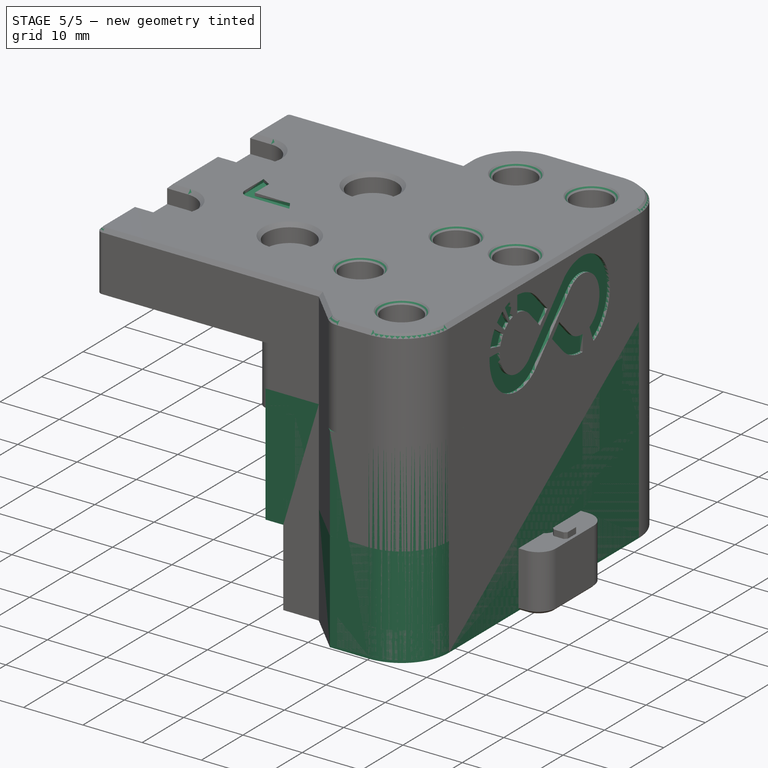
[diagram: stage 5 of 5 — iso view after this stage's code; geometry added in this stage tinted green]
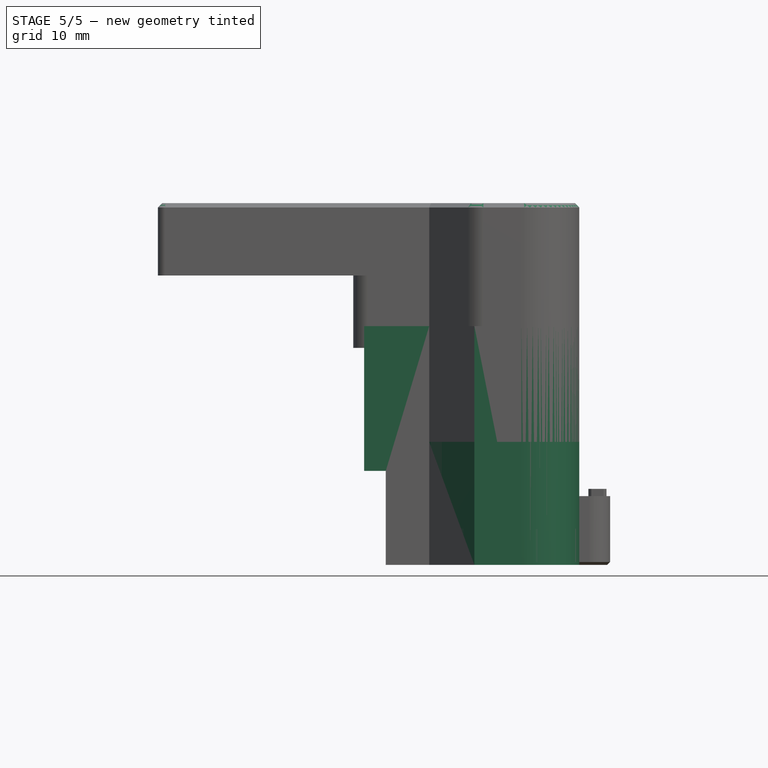
[diagram: stage 5 of 5 — front view after this stage's code; geometry added in this stage tinted green]
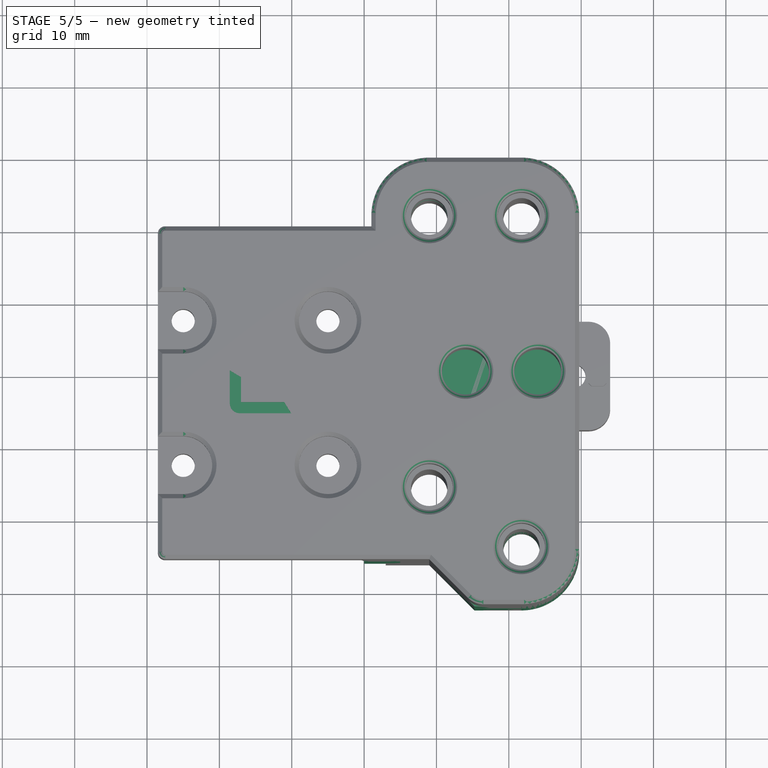
[diagram: stage 5 of 5 — top view after this stage's code; geometry added in this stage tinted green]
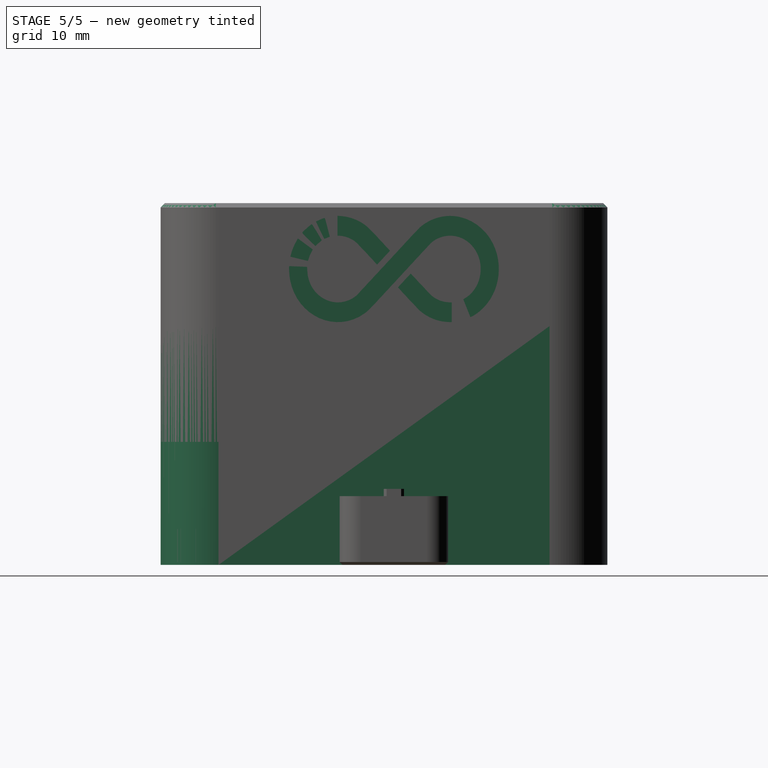
[diagram: stage 5 of 5 — right view after this stage's code; geometry added in this stage tinted green]
FEATURE [Spreadsheet::Sheet] Spreadsheet  label="params"
  cells = A1=Front idler x offset; B1(front_x_offset)=21.74; A2=Front idler y offset; B2(front_y_offset)=24.24; A3=Back idler x offset; B3(back_x_offset)=9; A4=Back idelr y offset; B4(back_y_offset)=21.5; A5=Base size x; B5(base_size_x)=29.74; A6=Base size Y; B6(base_size_y)=61.74; A7=Base x offset; B7(base_x_offset)=0; A8=Base y offset; B8(base_y_offset)=32.24; A9=M5 hole large; B9(m5_hole_large)=2.6; A10=M5 hole small; B10(m5_hole_small)=2.525; A11=M3 hole large; B11(m3_hole_large)=1.6; A12=M3 hole small; B12(m3_hole_small)=1.45; A13=M5 insert; B13(m5_insert)=3.25; A14=M3 insert; B14(m3_insert)=1.9; A15=idler clearance; B15(idler_clearance)=8.5; A16=body screw y offset; B16(body_screw_y_offset)=16; A17=idler pocket height; B17(idler_pocket_height)=12; A18=idler support r; B18(idler_support_r)=4; A19=idler support h; B19(idler_support_h)=0.85; A20=aluminum profile; B20(profile_width)=15; A21=profile aligner width; B21(profile_slot)=2.8; A22=profile offset; B22(profile_offset)=9.5; A23=m3 head small; B23(m3_head_small)=3.25
FEATURE [Part::Feature] Body001001  label="body-template001"
  shape: bbox 29.74 x 61.74 x 33 mm, 20 faces (baked)
FEATURE [PartDesign::FeatureBase] BaseFeature
  BaseFeature = -> Body001001
FEATURE [Sketcher::SketchObject] Sketch
  FullyConstrained = true
  MapMode = 5
  Placement = pos=(0,0,0) rot=(1,0,0;3.14159rad)
  Support = -> [BaseFeature]
  expr: Constraints[11] = <<params>>.base_y_offset
  expr: Constraints[9] = <<params>>.base_size_y
  sketch-geometry (4):
    g0: LineSegment StartX=0 StartY=32.24 StartZ=0 EndX=3 EndY=32.24 EndZ=0
    g1: LineSegment StartX=3 StartY=32.24 StartZ=0 EndX=3 EndY=-29.5 EndZ=0
    g2: LineSegment StartX=3 StartY=-29.5 StartZ=0 EndX=0 EndY=-29.5 EndZ=0
    g3: LineSegment StartX=0 StartY=-29.5 StartZ=0 EndX=0 EndY=32.24 EndZ=0
  constraints (12):
    c: Coincident(g0,g1)
    c: Coincident(g1,g2)
    c: Coincident(g2,g3)
    c: Coincident(g3,g0)
    c: Horizontal(g0)
    c: Horizontal(g2)
    c: Vertical(g1)
    c: Vertical(g3)
    c: DistanceX(g2,g2) = 3
    c: DistanceY(g3,g3) = 61.74
    c: DistanceX(g-1,g2) = 0
    c: DistanceY(g-1,g0) = 32.24
FEATURE [PartDesign::Pocket] Pocket
  BaseFeature = -> BaseFeature
  Length = 13
  Length2 = 100
  Profile = -> Sketch
  Type = 0
FEATURE [Sketcher::SketchObject] Sketch001
  FullyConstrained = true
  MapMode = 5
  Placement = pos=(0,0,33) rot=(0,0,1;0rad)
  Support = -> [Pocket]
  expr: Constraints[31] = <<params>>.base_size_y - <<params>>.base_y_offset - 23 + 3
  expr: Constraints[21] = <<params>>.back_x_offset
  expr: Constraints[15] = <<params>>.back_y_offset
  expr: Constraints[11] = <<params>>.base_y_offset - 23 - 3
  expr: Constraints[10] = <<params>>.base_y_offset
  sketch-geometry (13):
    g0: LineSegment StartX=0 StartY=-26 StartZ=0 EndX=0 EndY=-32.24 EndZ=0
    g1: LineSegment StartX=0 StartY=-32.24 StartZ=0 EndX=15.24 EndY=-32.24 EndZ=0
    g2: LineSegment StartX=15.24 StartY=-32.24 StartZ=0 EndX=9 EndY=-26 EndZ=0
    g3: LineSegment StartX=9 StartY=-26 StartZ=0 EndX=0 EndY=-26 EndZ=0
    g4: ArcOfCircle CenterX=9 CenterY=21.5 CenterZ=0 NormalX=0 NormalY=0 NormalZ=1 AngleXU=0 Radius=8 StartAngle=1.5708 EndAngle=3.14159
    g5: LineSegment StartX=1 StartY=21.5 StartZ=0 EndX=9 EndY=21.5 EndZ=0
    g6: GeomPoint X=9 Y=29.5 Z=0
    g7: GeomPoint X=9 Y=29.5 Z=0
    g8: LineSegment StartX=9 StartY=29.5 StartZ=0 EndX=9 EndY=21.5 EndZ=0
    g9: LineSegment StartX=1 StartY=21.5 StartZ=0 EndX=1 EndY=20 EndZ=0
    g10: LineSegment StartX=0 StartY=20 StartZ=0 EndX=0 EndY=29.5 EndZ=0
    g11: LineSegment StartX=0 StartY=20 StartZ=0 EndX=1 EndY=20 EndZ=0
    g12: LineSegment StartX=0 StartY=29.5 StartZ=0 EndX=9 EndY=29.5 EndZ=0
  constraints (34):
    c: Vertical(g0)
    c: Coincident(g0,g1)
    c: Horizontal(g1)
    c: Coincident(g1,g2)
    c: Coincident(g2,g3)
    c: Coincident(g3,g0)
    c: Horizontal(g3)
    c: DistanceX(g3,g3) = 9
    c: Angle(g2,g1) = 0.785398
    c: DistanceX(g0,g-1) = 0
    c: DistanceY(g0,g-1) = 32.24
    c: DistanceY(g0,g0) = 6.24
    c: Coincident(g5,g4)
    c: Coincident(g5,g4)
    c: Horizontal(g5)
    c: DistanceY(g-1,g4) = 21.5
    c: Coincident(g6,g4)
    c: Coincident(g7,g4)
    c: Coincident(g8,g4)
    c: Coincident(g8,g4)
    c: Vertical(g8)
    c: DistanceX(g-1,g4) = 9
    c: Radius(g4) = 8
    c: Coincident(g9,g4)
    c: Vertical(g9)
    c: Coincident(g11,g10)
    c: Coincident(g11,g9)
    c: Horizontal(g11)
    c: Coincident(g12,g10)
    c: Coincident(g12,g4)
    c: Horizontal(g12)
    c: DistanceY(g10,g10) = 9.5
    c: Vertical(g10)
    c: DistanceX(g11,g11) = 1
FEATURE [PartDesign::Pocket] Pocket001
  BaseFeature = -> Pocket
  Length = 15
  Length2 = 100
  Profile = -> Sketch001
  Type = 1
FEATURE [PartDesign::Pocket] Pocket002
  BaseFeature = -> Pocket001
  Length = 5
  Length2 = 100
  Profile = -> Sketch001
  Type = 1
FEATURE [PartDesign::Body] Body  label="rop-template"
  BaseFeature = -> Body001001
  Group = -> [BaseFeature,Sketch,Pocket,Sketch001,Pocket001,Pocket002]
  Origin = -> Origin
  Placement = pos=(0,0,17) rot=(0,0,1;0rad)
  Tip = -> Pocket002
FEATURE [Part::Feature] Body_cs
  Placement = pos=(0,0,-1) rot=(0,0,1;0rad)
  shape: bbox 26.74 x 61.74 x 3e-07 mm, 0 faces, 0 solids (baked)
FEATURE [Part::Extrusion] Extrude  label="bottom-template"
  Base = -> Body_cs
  Dir = (0,0,1)
  DirMode = 2
  FaceMakerClass = Part::FaceMakerBullseye
  LengthFwd = 17
  LengthRev = 0
  Solid = true
  Symmetric = false
FEATURE [PartDesign::Chamfer] Chamfer030006
  Angle = 45
  Base = -> Pad007 [Edge165,Edge161]
  BaseFeature = -> Pad007
  ChamferType = 0
  FlipDirection = false
  Size = 0.6
  Size2 = 1
  SupportTransform = false
FEATURE [PartDesign::Body] Body001003  label="top-left"
  BaseFeature = -> Fusion001001
  Group = -> [BaseFeature002,Sketch003,Pocket004,Sketch006,Pad002,Sketch007,Pad003,Chamfer001,Sketch008,Pocket005,Fillet002,Fillet003,Fillet004,Fillet007,Fillet009,Fillet010,Sketch009,Pocket006,Chamfer002,Sketch016,Pocket012,Sketch017,Pocket013,Sketch019,Pad006,Chamfer030004,Sketch021,Pad007,Chamfer030006]
  Origin = -> Origin002
  Tip = -> Chamfer030006
FEATURE [Part::Refine] Body001003001  label="top-left001"
  Source = -> Body001003
FEATURE [Part::Chamfer] Chamfer030008
  Base = -> Body001003001
  Edges = 30 edges r=0.6: [Edge44,Edge63,Edge64,Edge66,Edge69,Edge70,Edge107,Edge108,Edge109,Edge110,Edge111,Edge112,Edge113,Edge114,Edge115,Edge116,Edge117,Edge118,Edge119,Edge120,Edge121,Edge122,Edge123,Edge124,Edge125,Edge126,Edge127,Edge128,Edge129,Edge130]
FEATURE [Part::Feature] Cut001  label="L"
  shape: bbox 8.49 x 5.926 x 10 mm, 10 faces (baked)
FEATURE [Part::Cut] Cut
  Base = -> Chamfer030008
  Tool = -> Cut001
FEATURE [Part::Feature] Part__Mirroring001  label="logo (Mirror #1)001"
  Placement = pos=(0,0,79.5) rot=(0,0,1;0rad)
  shape: bbox 4 x 32 x 20 mm, 634 faces (baked)
FEATURE [Part::Cut] Cut002
  Base = -> Cut
  Tool = -> Part__Mirroring001
FEATURE [PartDesign::Body] Body001002  label="bottom-left"
  BaseFeature = -> Extrude001
  Group = -> [BaseFeature001,Sketch002,Pocket003,Fillet,Fillet001,Sketch004,Pad,Sketch005,Pad001,Chamfer,Fillet005,Fillet006,Fillet008,Sketch010,Pad004,Fillet011,Sketch011,Pocket007,Chamfer003,Sketch012,Pocket008,Chamfer030002,Sketch013,Pocket009,Sketch014,Pocket010,Sketch015,Pocket011,Sketch018,Pad005,Chamfer030003,Sketch020,Pocket014,Chamfer030009]
  Origin = -> Origin001
  Tip = -> Chamfer030009
FEATURE [Part::Refine] Body001002001  label="bottom-left001"
  Source = -> Body001002
FEATURE [Part::Chamfer] Chamfer030007
  Base = -> Body001002001
  Edges = 29 edges r=0.4: [Edge2,Edge6,Edge9,Edge10,Edge11,Edge12,Edge13,Edge47,Edge52,Edge56,Edge57,Edge66,Edge78,Edge83,Edge89,Edge91,Edge105,Edge109,Edge146,Edge154,Edge163,Edge164,Edge166,Edge189,Edge190,Edge192,Edge228,Edge235,Edge236]
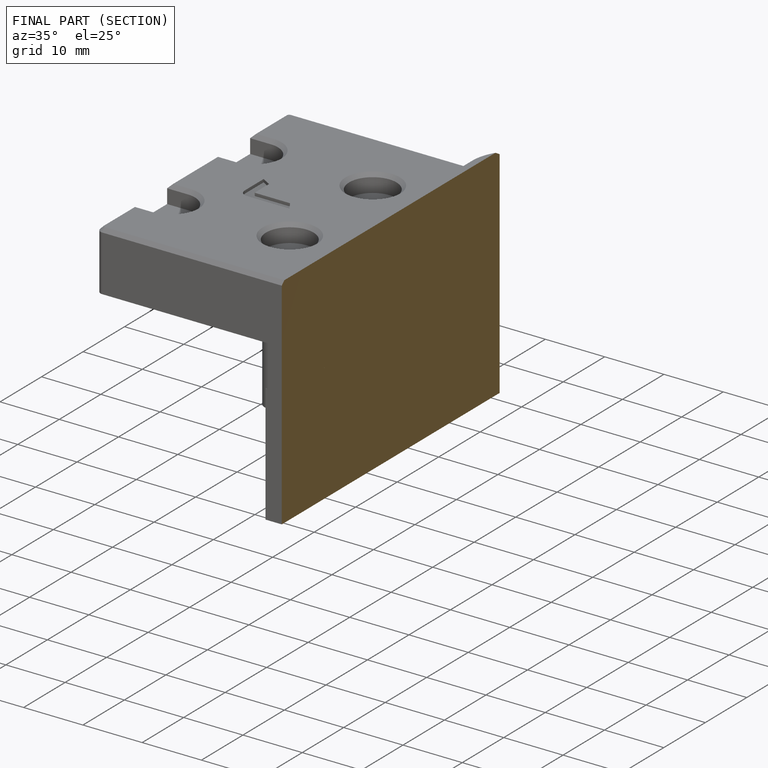
[diagram: finished part — half-section view (interior)]
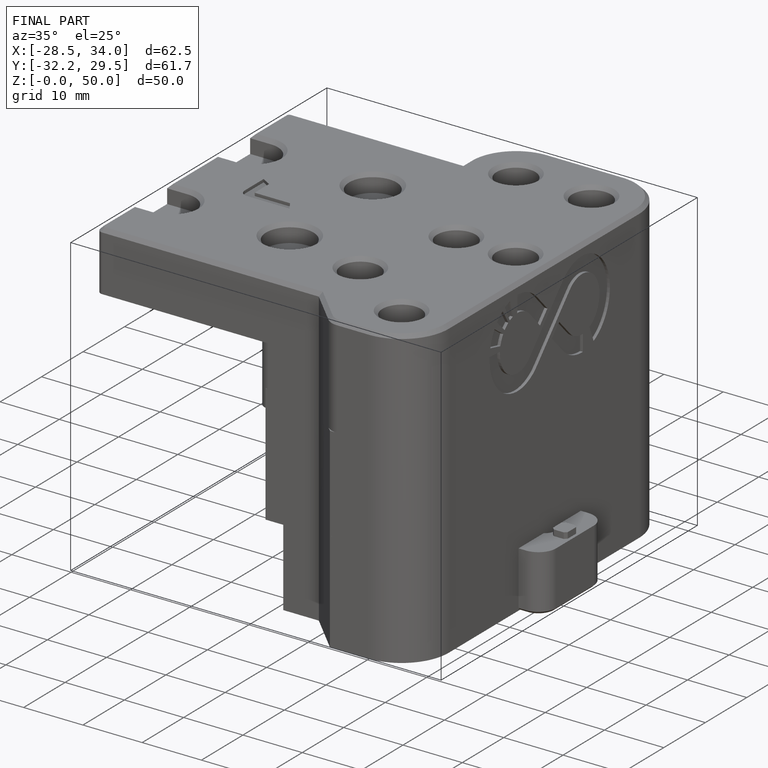
[diagram: finished part — iso view with bounding-box wireframe]
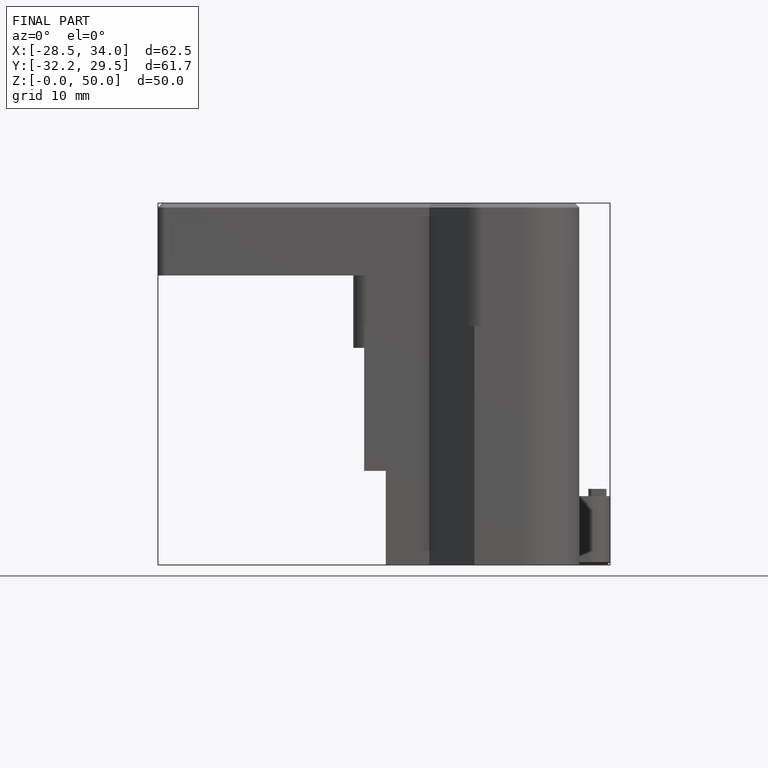
[diagram: finished part — front view with bounding-box wireframe]
